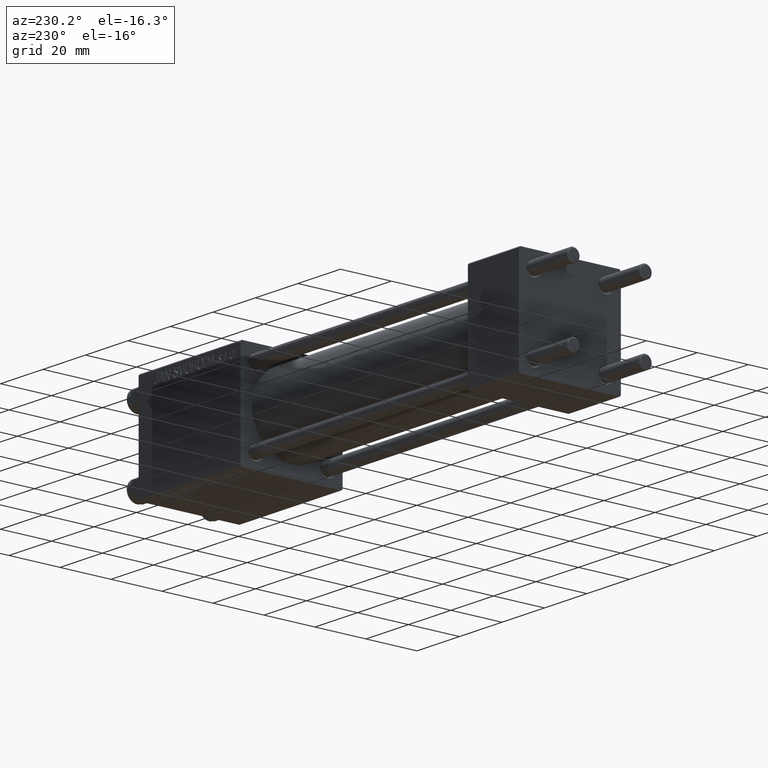
[diagram: clean part render]
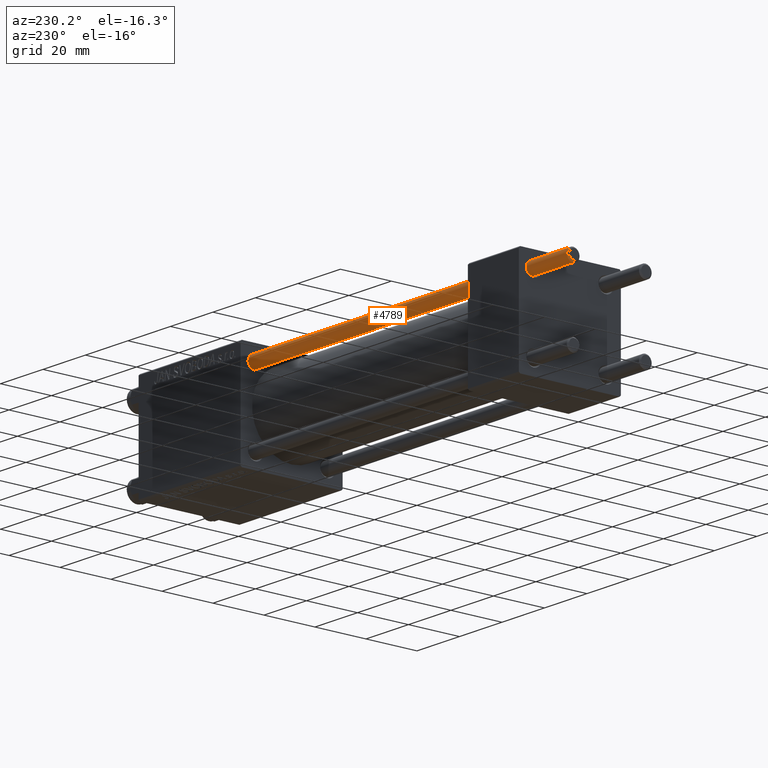
[diagram: same view with one face highlighted and labeled with its STEP entity id]
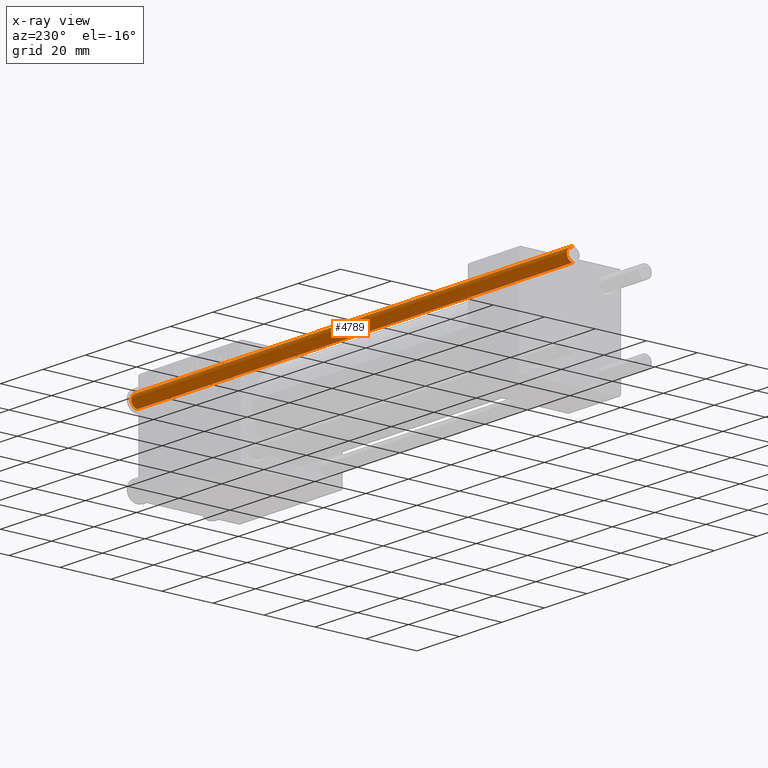
[diagram: x-ray of the same camera — body ghosted, the highlighted face saturated]
A machine part, auxiliary view. The second image highlights one B-rep face of the part: STEP entity #4789.
The next image is the same camera in x-ray: the body ghosted, the highlighted face saturated — about 0% of this face is hidden behind the body in this view.
In plain terms, the highlighted cylindrical surface (edge-blend (fillet) strip) has radius 2.5 mm, axis along (-1, -0, -0).
Its self-contained STEP definition (entity closure, byte-faithful):
#1284 = FACE_OUTER_BOUND ( 'NONE', #34523, .T. ) ;
#2017 = CARTESIAN_POINT ( 'NONE',  ( 0.000000000000000000, 0.000000000000000000, 206.0000000000000000 ) ) ;
#2929 = CARTESIAN_POINT ( 'NONE',  ( -2.500000000000000000, 0.000000000000000000, 206.0000000000000000 ) ) ;
#3077 = EDGE_CURVE ( 'NONE', #17046, #44523, #44101, .T. ) ;
#3662 = EDGE_CURVE ( 'NONE', #44523, #42331, #14967, .T. ) ;
#4789 = ADVANCED_FACE ( 'NONE', ( #1284 ), #21615, .T. ) ;
#5376 = ORIENTED_EDGE ( 'NONE', *, *, #3077, .T. ) ;
#5388 = AXIS2_PLACEMENT_3D ( 'NONE', #2017, #5779, #32207 ) ;
#5779 = DIRECTION ( 'NONE',  ( -0.000000000000000000, -0.000000000000000000, -1.000000000000000000 ) ) ;
#6196 = CARTESIAN_POINT ( 'NONE',  ( 2.500000000000000000, 3.061616997868383141E-16, 205.5000000000000284 ) ) ;
#9948 = CARTESIAN_POINT ( 'NONE',  ( -2.500000000000000000, 0.000000000000000000, 205.5000000000000284 ) ) ;
#14486 = LINE ( 'NONE', #2929, #32947 ) ;
#14594 = CIRCLE ( 'NONE', #21816, 2.500000000000000000 ) ;
#14967 = CIRCLE ( 'NONE', #19823, 2.500000000000000000 ) ;
#17046 = VERTEX_POINT ( 'NONE', #6196 ) ;
#18698 = EDGE_CURVE ( 'NONE', #39841, #42331, #14486, .T. ) ;
#19823 = AXIS2_PLACEMENT_3D ( 'NONE', #28517, #28277, #31542 ) ;
#21526 = ORIENTED_EDGE ( 'NONE', *, *, #18698, .F. ) ;
#21615 = CYLINDRICAL_SURFACE ( 'NONE', #5388, 2.500000000000000000 ) ;
#21816 = AXIS2_PLACEMENT_3D ( 'NONE', #45762, #40703, #49056 ) ;
#24971 = CARTESIAN_POINT ( 'NONE',  ( 2.500000000000000000, 3.061616997868383141E-16, 206.0000000000000000 ) ) ;
#28277 = DIRECTION ( 'NONE',  ( -0.000000000000000000, -0.000000000000000000, 1.000000000000000000 ) ) ;
#28517 = CARTESIAN_POINT ( 'NONE',  ( 0.000000000000000000, 0.000000000000000000, 0.4999999999999726885 ) ) ;
#31346 = CARTESIAN_POINT ( 'NONE',  ( -2.500000000000000000, 0.000000000000000000, 0.4999999999999726885 ) ) ;
#31542 = DIRECTION ( 'NONE',  ( 1.000000000000000000, 0.000000000000000000, 0.000000000000000000 ) ) ;
#32059 = ORIENTED_EDGE ( 'NONE', *, *, #3662, .T. ) ;
#32207 = DIRECTION ( 'NONE',  ( -1.000000000000000000, 0.000000000000000000, 0.000000000000000000 ) ) ;
#32947 = VECTOR ( 'NONE', #37385, 1000.000000000000000 ) ;
#34523 = EDGE_LOOP ( 'NONE', ( #40637, #5376, #32059, #21526 ) ) ;
#35728 = EDGE_CURVE ( 'NONE', #39841, #17046, #14594, .T. ) ;
#37385 = DIRECTION ( 'NONE',  ( -0.000000000000000000, -0.000000000000000000, -1.000000000000000000 ) ) ;
#38913 = CARTESIAN_POINT ( 'NONE',  ( 2.500000000000000000, 3.061616997868383141E-16, 0.4999999999999726885 ) ) ;
#39841 = VERTEX_POINT ( 'NONE', #9948 ) ;
#40315 = DIRECTION ( 'NONE',  ( -0.000000000000000000, -0.000000000000000000, -1.000000000000000000 ) ) ;
#40637 = ORIENTED_EDGE ( 'NONE', *, *, #35728, .T. ) ;
#40703 = DIRECTION ( 'NONE',  ( 0.000000000000000000, 0.000000000000000000, -1.000000000000000000 ) ) ;
#41476 = VECTOR ( 'NONE', #40315, 1000.000000000000000 ) ;
#42331 = VERTEX_POINT ( 'NONE', #31346 ) ;
#44101 = LINE ( 'NONE', #24971, #41476 ) ;
#44523 = VERTEX_POINT ( 'NONE', #38913 ) ;
#45762 = CARTESIAN_POINT ( 'NONE',  ( 0.000000000000000000, 0.000000000000000000, 205.5000000000000284 ) ) ;
#49056 = DIRECTION ( 'NONE',  ( 1.000000000000000000, 0.000000000000000000, 0.000000000000000000 ) ) ;